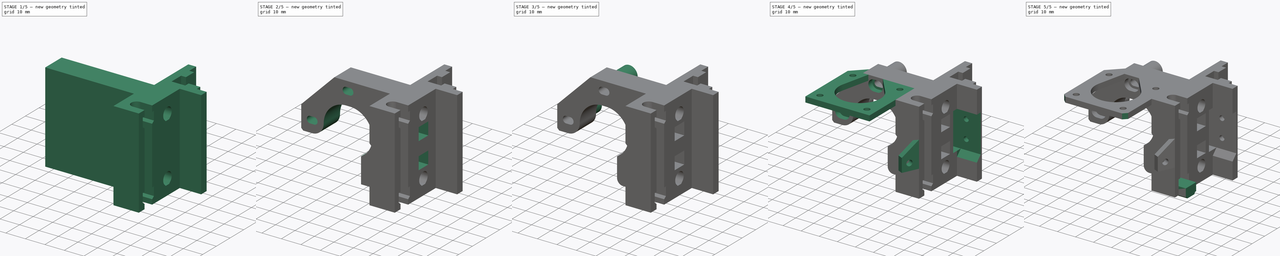
[diagram: build sequence overview — one tinted view per stage of 5, left to right]
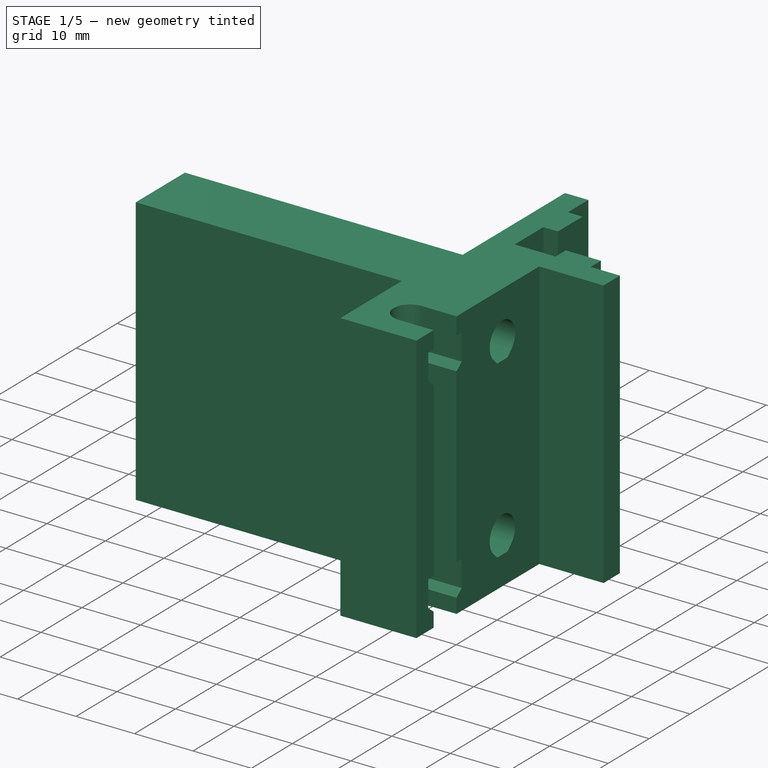
[diagram: stage 1 of 5 — iso view after this stage's code; geometry added in this stage tinted green]
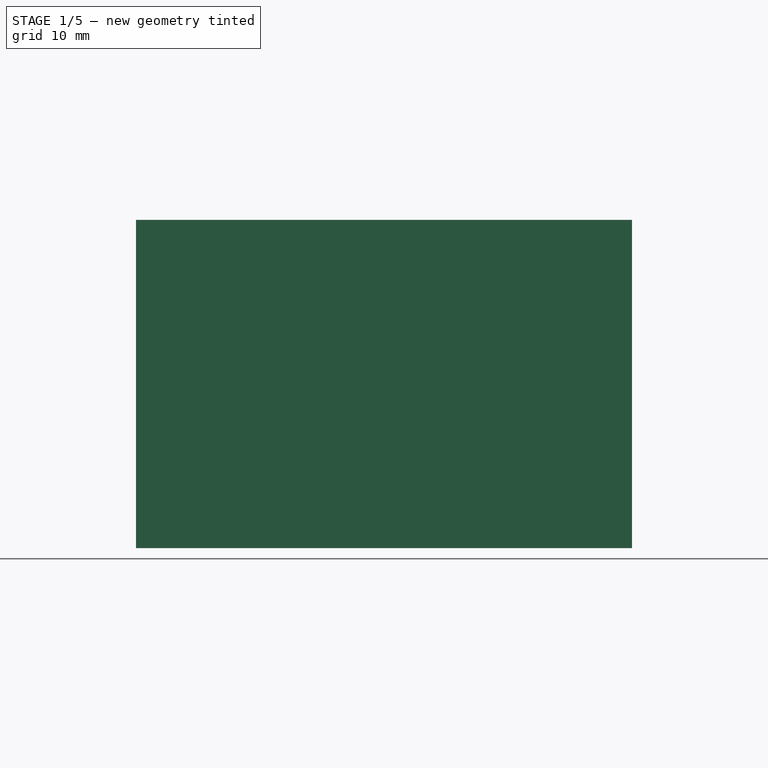
[diagram: stage 1 of 5 — front view after this stage's code; geometry added in this stage tinted green]
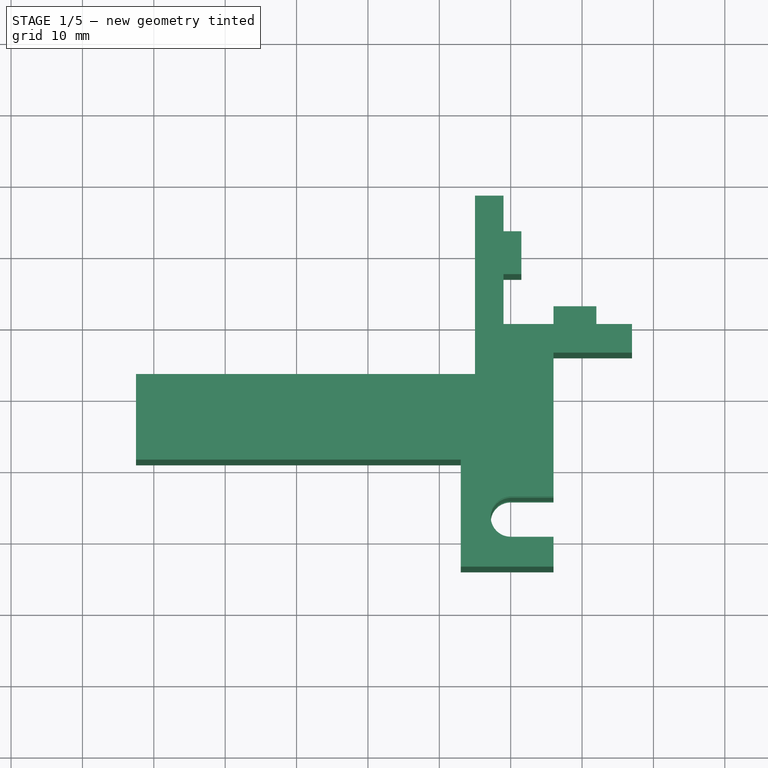
[diagram: stage 1 of 5 — top view after this stage's code; geometry added in this stage tinted green]
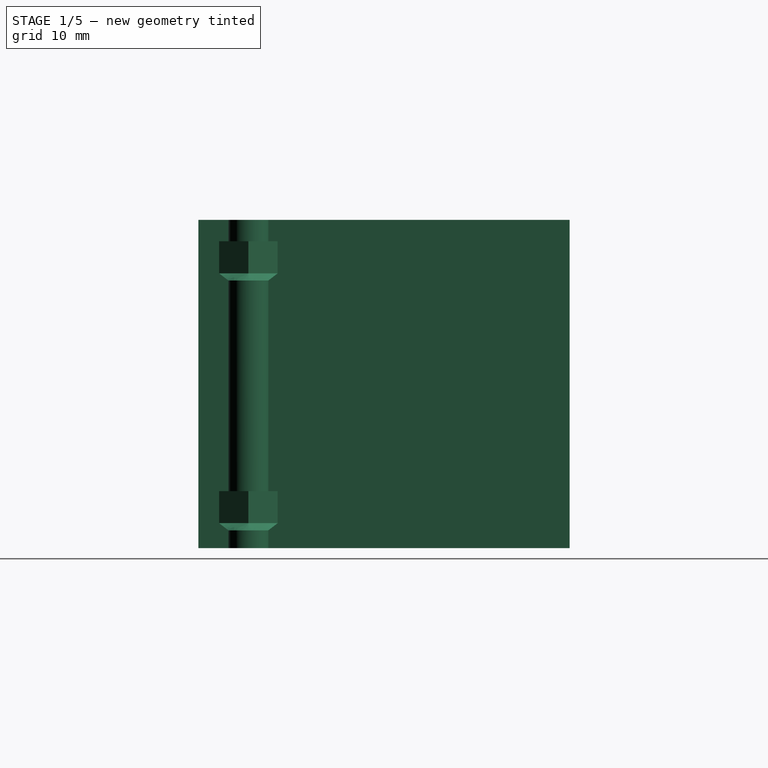
[diagram: stage 1 of 5 — right view after this stage's code; geometry added in this stage tinted green]
FCSTD DOCUMENT  (FreeCAD 0.14R3692 (Git))
Label: x-motor-e
License: CC-BY 3.0
LicenseURL: http://creativecommons.org/licenses/by/3.0/
objects: Sketcher::SketchObject×16, Part::Feature×13, PartDesign::Pocket×11, PartDesign::Pad×5, Part::Cut×3, Part::FeaturePython×3, Part::MultiFuse×2, Part::Cylinder×2, App::DocumentObjectGroup×2, Part::Chamfer×2, Part::Loft×1, Part::Mirroring×1, Part::Fillet×1
note: 76 computed .brp shape members not serialized (recipe doc carries the construction recipe); baked Part::Feature solids carry a one-line shape summary decoded from their .brp

FEATURE [Sketcher::SketchObject] Sketch  label="body-sketch"
  sketch-geometry (12):
    g0: LineSegment StartX=-21 StartY=18 StartZ=0 EndX=-21 EndY=0 EndZ=0
    g1: LineSegment StartX=-21 StartY=0 StartZ=0 EndX=-3 EndY=0 EndZ=0
    g2: LineSegment StartX=-3 StartY=0 StartZ=0 EndX=-3 EndY=-4 EndZ=0
    g3: LineSegment StartX=-3 StartY=-4 StartZ=0 EndX=-14 EndY=-4 EndZ=0
    g4: LineSegment StartX=-14 StartY=-4 StartZ=0 EndX=-14 EndY=-34 EndZ=0
    g5: LineSegment StartX=-14 StartY=-34 StartZ=0 EndX=-27 EndY=-34 EndZ=0
    g6: LineSegment StartX=-27 StartY=-34 StartZ=0 EndX=-27 EndY=-19 EndZ=0
    g7: LineSegment StartX=-27 StartY=-19 StartZ=0 EndX=-72.5 EndY=-19 EndZ=0
    g8: LineSegment StartX=-72.5 StartY=-19 StartZ=0 EndX=-72.5 EndY=-7 EndZ=0
    g9: LineSegment StartX=-72.5 StartY=-7 StartZ=0 EndX=-25 EndY=-7 EndZ=0
    g10: LineSegment StartX=-25 StartY=-7 StartZ=0 EndX=-25 EndY=18 EndZ=0
    g11: LineSegment StartX=-25 StartY=18 StartZ=0 EndX=-21 EndY=18 EndZ=0
  constraints (36):
    c: Coincident(g0,g1)
    c: Coincident(g1,g2)
    c: Coincident(g2,g3)
    c: Coincident(g3,g4)
    c: Coincident(g4,g5)
    c: Coincident(g5,g6)
    c: Coincident(g6,g7)
    c: Coincident(g7,g8)
    c: Coincident(g8,g9)
    c: Coincident(g9,g10)
    c: Coincident(g10,g11)
    c: Coincident(g11,g0)
    c: Vertical(g8)
    c: Vertical(g4)
    c: Vertical(g6)
    c: Vertical(g10)
    c: Vertical(g0)
    c: Vertical(g2)
    c: Horizontal(g5)
    c: Horizontal(g7)
    c: Horizontal(g9)
    c: Horizontal(g1)
    c: Horizontal(g3)
    c: Horizontal(g11)
    c: DistanceX(g1) = 18
    c: DistanceY(g0) = -18
    c: DistanceX(g11) = 4
    c: DistanceY(g2) = -4
    c: PointOnObject(g0,g-1)
    c: DistanceX(g-1,g0) = -21
    c: DistanceY(g4) = -30
    c: DistanceX(g5) = -13
    c: DistanceY(g6) = 15
    c: DistanceX(g7) = -45.5
    c: DistanceY(g8) = 12
    c: DistanceX(g3) = -11
FEATURE [PartDesign::Pad] Pad  label="body-pad"
  Length = 46
  Length2 = 100
  Sketch = -> Sketch
  Type = 0
FEATURE [Sketcher::SketchObject] Sketch001  label="smooth-rod-holes-sketch"
  Placement = pos=(-14,0,0) rot=(0.57735,0.57735,0.57735;2.0944rad)
  Support = -> Pad [Face5]
  sketch-geometry (8):
    g0: ArcOfCircle CenterX=-13 CenterY=38 CenterZ=0 NormalX=0 NormalY=0 NormalZ=1 Radius=3.1 StartAngle=5.49779 EndAngle=10.2102
    g1: LineSegment StartX=-10.808 StartY=35.808 StartZ=0 EndX=-11.7159 EndY=34.9 EndZ=0
    g2: LineSegment StartX=-11.7159 StartY=34.9 StartZ=0 EndX=-14.2841 EndY=34.9 EndZ=0
    g3: LineSegment StartX=-14.2841 StartY=34.9 StartZ=0 EndX=-15.192 EndY=35.808 EndZ=0
    g4: ArcOfCircle CenterX=-13 CenterY=8 CenterZ=0 NormalX=0 NormalY=0 NormalZ=1 Radius=3.1 StartAngle=5.49779 EndAngle=10.2102
    g5: LineSegment StartX=-10.808 StartY=5.80797 StartZ=0 EndX=-11.716 EndY=4.9 EndZ=0
    g6: LineSegment StartX=-11.716 StartY=4.9 StartZ=0 EndX=-14.2841 EndY=4.9 EndZ=0
    g7: LineSegment StartX=-14.2841 StartY=4.9 StartZ=0 EndX=-15.192 EndY=5.80798 EndZ=0
  constraints (26):
    c: Radius(g0) = 3.1
    c: DistanceY(g-1,g0) = 38
    c: DistanceX(g-1,g0) = -13
    c: Coincident(g1,g2)
    c: Coincident(g2,g3)
    c: Coincident(g0,g1)
    c: Coincident(g3,g0)
    c: Tangent(g0,g1)
    c: Tangent(g0,g3)
    c: Equal(g1,g3)
    c: Angle(g1,g3) = 1.5708
    c: Coincident(g5,g6)
    c: Coincident(g6,g7)
    c: Coincident(g4,g5)
    c: Coincident(g7,g4)
    c: Tangent(g5,g4)
    c: Tangent(g7,g4)
    c: Equal(g7,g5)
    c: Angle(g5,g7) = 1.5708
    c: Radius(g4) = 3.1
    c: DistanceY(g-1,g4) = 8
    c: DistanceX(g-1,g4) = -13
    c: DistanceY(g2,g0) = 3.1
    c: Horizontal(g2)
    c: DistanceY(g6,g4) = 3.1
    c: Horizontal(g6)
FEATURE [PartDesign::Pocket] Pocket  label="smooth-rod-holes-pocket"
  Length = 26
  Sketch = -> Sketch001
  Type = 0
FEATURE [Sketcher::SketchObject] Sketch002  label="threaded-rod-channel-sketch"
  Placement = pos=(0,0,46) rot=(0,0,1;0rad)
  Support = -> Pocket [Face5]
  sketch-geometry (4):
    g0: ArcOfCircle CenterX=-20 CenterY=-27 CenterZ=0 NormalX=0 NormalY=0 NormalZ=1 Radius=2.8 StartAngle=1.57079 EndAngle=4.71239
    g1: ArcOfCircle CenterX=-13 CenterY=-27 CenterZ=0 NormalX=0 NormalY=0 NormalZ=1 Radius=2.8 StartAngle=4.71239 EndAngle=7.85398
    g2: LineSegment StartX=-20 StartY=-29.8 StartZ=0 EndX=-13 EndY=-29.8 EndZ=0
    g3: LineSegment StartX=-20 StartY=-24.2 StartZ=0 EndX=-13 EndY=-24.2 EndZ=0
  constraints (14):
    c: Tangent(g0,g2)
    c: Tangent(g0,g3)
    c: Tangent(g1,g2)
    c: Tangent(g1,g3)
    c: Coincident(g0,g3)
    c: Coincident(g0,g2)
    c: Coincident(g2,g1)
    c: Coincident(g3,g1)
    c: Horizontal(g2)
    c: Equal(g0,g1)
    c: Radius(g0) = 2.8
    c: DistanceX(g2) = 7
    c: DistanceY(g-1,g0) = -27
    c: DistanceX(g-1,g0) = -20
FEATURE [PartDesign::Pocket] Pocket001  label="threaded-rod-channel-pocket"
  Length = 46
  Sketch = -> Sketch002
  Type = 0
FEATURE [Part::Feature] Fusion001  label="threaded-rod-nut-bottom"
  Placement = pos=(0,0,3.5) rot=(0,0,1;0rad)
  shape: bbox 14.73 x 8.2 x 5.5 mm, 16 faces (baked)
FEATURE [Part::Feature] Fusion002  label="threaded-rod-nut-top"
  Placement = pos=(0,0,38.5) rot=(0,0,1;0rad)
  shape: bbox 14.73 x 8.2 x 5.5 mm, 16 faces (baked)
FEATURE [Part::Cut] Cut  label="threaded-rod-nut-bottom-cut"
  Base = -> Pocket001
  Tool = -> Fusion001
FEATURE [Part::Cut] Cut001  label="threaded-rod-nut-top-cut"
  Base = -> Cut
  Tool = -> Fusion002
FEATURE [Sketcher::SketchObject] Sketch005  label="slot-guides-sketch"
  Placement = pos=(0,0,46) rot=(0,0,1;0rad)
  Support = -> Cut001 [Face5]
  sketch-geometry (8):
    g0: LineSegment StartX=-14 StartY=2.5 StartZ=0 EndX=-8 EndY=2.5 EndZ=0
    g1: LineSegment StartX=-8 StartY=2.5 StartZ=0 EndX=-8 EndY=0 EndZ=0
    g2: LineSegment StartX=-8 StartY=0 StartZ=0 EndX=-14 EndY=0 EndZ=0
    g3: LineSegment StartX=-14 StartY=0 StartZ=0 EndX=-14 EndY=2.5 EndZ=0
    g4: LineSegment StartX=-21 StartY=13 StartZ=0 EndX=-18.5 EndY=13 EndZ=0
    g5: LineSegment StartX=-18.5 StartY=13 StartZ=0 EndX=-18.5 EndY=7 EndZ=0
    g6: LineSegment StartX=-18.5 StartY=7 StartZ=0 EndX=-21 EndY=7 EndZ=0
    g7: LineSegment StartX=-21 StartY=7 StartZ=0 EndX=-21 EndY=13 EndZ=0
  constraints (24):
    c: Coincident(g0,g1)
    c: Coincident(g1,g2)
    c: Coincident(g2,g3)
    c: Coincident(g3,g0)
    c: Horizontal(g0)
    c: Horizontal(g2)
    c: Vertical(g1)
    c: Vertical(g3)
    c: Coincident(g4,g5)
    c: Coincident(g5,g6)
    c: Coincident(g6,g7)
    c: Coincident(g7,g4)
    c: Horizontal(g4)
    c: Horizontal(g6)
    c: Vertical(g5)
    c: Vertical(g7)
    c: DistanceX(g0) = 6
    c: DistanceY(g1) = -2.5
    c: Equal(g0,g5)
    c: Equal(g1,g4)
    c: DistanceX(g-1,g1) = -8
    c: PointOnObject(g1,g-1)
    c: DistanceX(g-1,g6) = -21
    c: DistanceY(g-1,g6) = 7
FEATURE [PartDesign::Pad] Pad003  label="slot-guides-pad"
  Length = 46
  Length2 = 100
  Reversed = true
  Sketch = -> Sketch005
  Type = 0
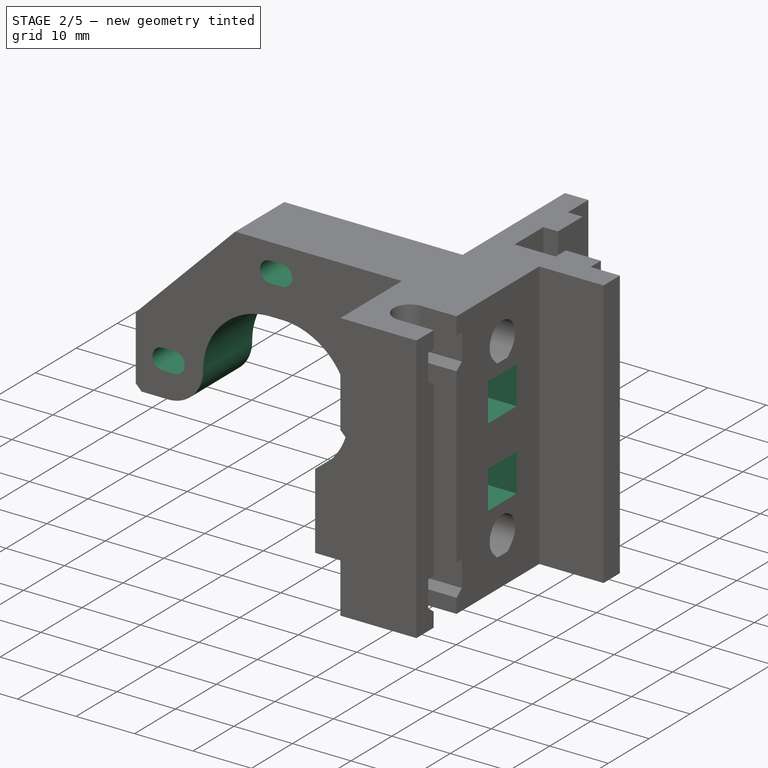
[diagram: stage 2 of 5 — iso view after this stage's code; geometry added in this stage tinted green]
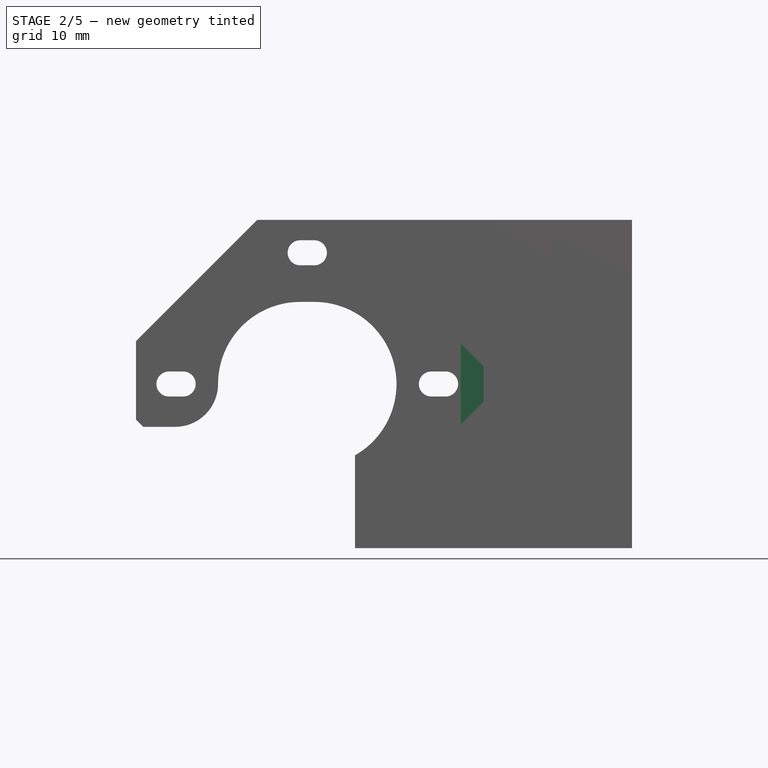
[diagram: stage 2 of 5 — front view after this stage's code; geometry added in this stage tinted green]
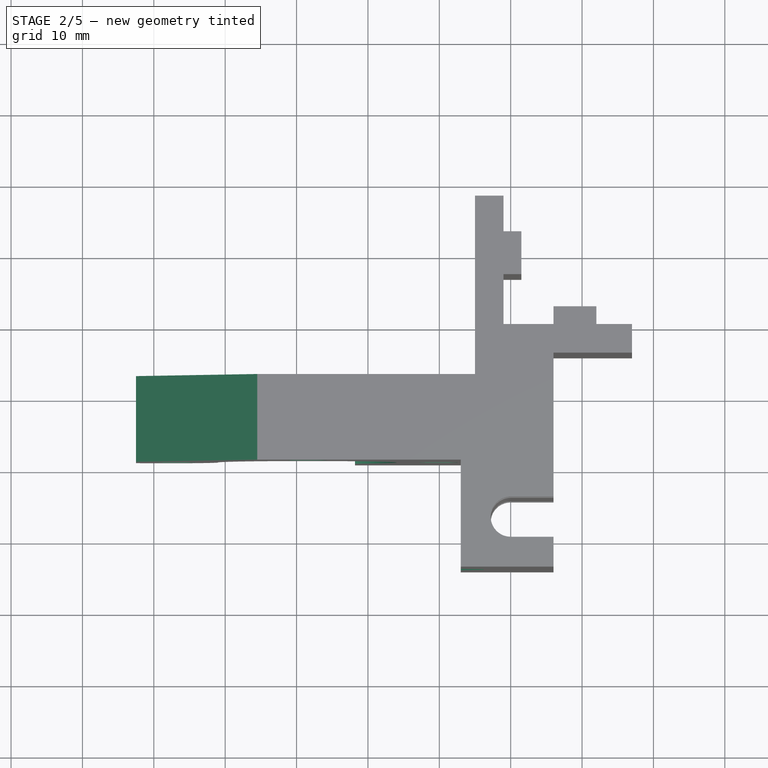
[diagram: stage 2 of 5 — top view after this stage's code; geometry added in this stage tinted green]
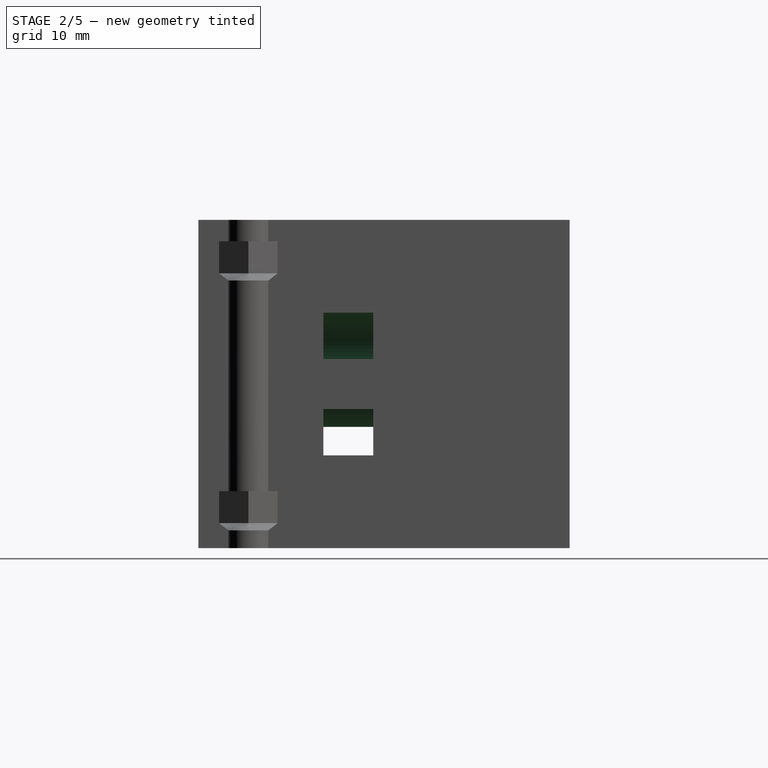
[diagram: stage 2 of 5 — right view after this stage's code; geometry added in this stage tinted green]
FEATURE [Sketcher::SketchObject] Sketch006  label="motor-corner-cutout-sketch"
  Placement = pos=(0,-34,0) rot=(1,0,0;1.5708rad)
  Support = -> Pad003 [Face15]
  sketch-geometry (9):
    g0: LineSegment [constr] StartX=-47.5 StartY=47.7487 StartZ=0 EndX=-72.2487 EndY=23 EndZ=0
    g1: LineSegment [constr] StartX=-72.2487 StartY=23 StartZ=0 EndX=-47.5 EndY=-1.74874 EndZ=0
    g2: LineSegment [constr] StartX=-47.5 StartY=-1.74874 StartZ=0 EndX=-22.7513 EndY=23 EndZ=0
    g3: LineSegment [constr] StartX=-22.7513 StartY=23 StartZ=0 EndX=-47.5 EndY=47.7487 EndZ=0
    g4: LineSegment StartX=-23.8119 StartY=25.5 StartZ=0 EndX=-23.8119 EndY=20.5 EndZ=0
    g5: LineSegment StartX=-23.8119 StartY=25.5 StartZ=0 EndX=-27 EndY=28.6881 EndZ=0
    g6: LineSegment StartX=-27 StartY=28.6881 StartZ=0 EndX=-27 EndY=17.3119 EndZ=0
    g7: LineSegment StartX=-27 StartY=17.3119 StartZ=0 EndX=-23.8119 EndY=20.5 EndZ=0
    g8: GeomPoint [constr] X=-23.8119 Y=24.0607 Z=0
  constraints (26):
    c: Coincident(g0,g1)
    c: Coincident(g1,g2)
    c: Coincident(g2,g3)
    c: Coincident(g3,g0)
    c: Distance(g3) = 35
    c: Equal(g2,g3)
    c: Equal(g3,g1)
    c: Equal(g1,g0)
    c: Angle(g2,g1) = 1.5708
    c: DistanceX(g-1,g1) = -47.5
    c: DistanceY(g-1,g2) = 23
    c: DistanceY(g-1,g0) = 23
    c: Vertical(g4)
    c: DistanceY(g4) = -5
    c: Coincident(g5,g6)
    c: Coincident(g6,g7)
    c: Coincident(g7,g4)
    c: Coincident(g4,g5)
    c: Parallel(g3,g5)
    c: Parallel(g7,g2)
    c: DistanceY(g4,g2) = 2.5
    c: Vertical(g6)
    c: DistanceX(g-1,g6) = -27
    c: PointOnObject(g8,g3)
    c: Distance(g8,g2) = 1.5
    c: PointOnObject(g8,g4)
FEATURE [PartDesign::Pocket] Pocket002  label="motor-corner-cutout-pocket"
  Length = 15
  Sketch = -> Sketch006
  Type = 0
FEATURE [Sketcher::SketchObject] Sketch007  label="motor-shaft-cutout-sketch"
  Placement = pos=(0,-19,0) rot=(1,0,0;1.5708rad)
  Support = -> Pocket002 [Face11]
  sketch-geometry (4):
    g0: ArcOfCircle CenterX=-47.5 CenterY=23 CenterZ=0 NormalX=0 NormalY=0 NormalZ=1 Radius=11.5 StartAngle=4.71239 EndAngle=7.85398
    g1: ArcOfCircle CenterX=-49.5 CenterY=23 CenterZ=0 NormalX=0 NormalY=0 NormalZ=1 Radius=11.5 StartAngle=1.5708 EndAngle=4.71239
    g2: LineSegment StartX=-47.5 StartY=34.5 StartZ=0 EndX=-49.5 EndY=34.5 EndZ=0
    g3: LineSegment StartX=-47.5 StartY=11.5 StartZ=0 EndX=-49.5 EndY=11.5 EndZ=0
  constraints (14):
    c: Tangent(g0,g2)
    c: Tangent(g0,g3)
    c: Tangent(g1,g2)
    c: Tangent(g1,g3)
    c: Coincident(g0,g3)
    c: Coincident(g0,g2)
    c: Coincident(g2,g1)
    c: Coincident(g3,g1)
    c: Horizontal(g2)
    c: Equal(g0,g1)
    c: DistanceX(g3) = -2
    c: Radius(g0) = 11.5
    c: DistanceX(g-1,g0) = -47.5
    c: DistanceY(g-1,g0) = 23
FEATURE [PartDesign::Pocket] Pocket003  label="motor-shaft-cutout-pocket"
  Length = 12
  Sketch = -> Sketch007
  Type = 0
FEATURE [Sketcher::SketchObject] Sketch008  label="motor-screw-holes-sketch"
  Placement = pos=(0,-19,0) rot=(1,0,0;1.5708rad)
  Support = -> Pocket003 [Face11]
  sketch-geometry (20):
    g0: LineSegment [constr] StartX=-47.5 StartY=41.3848 StartZ=0 EndX=-29.1152 EndY=23 EndZ=0
    g1: LineSegment [constr] StartX=-29.1152 StartY=23 StartZ=0 EndX=-47.5 EndY=4.61522 EndZ=0
    g2: LineSegment [constr] StartX=-47.5 StartY=4.61522 StartZ=0 EndX=-65.8848 EndY=23 EndZ=0
    g3: LineSegment [constr] StartX=-65.8848 StartY=23 StartZ=0 EndX=-47.5 EndY=41.3848 EndZ=0
    g4: ArcOfCircle CenterX=-31.1152 CenterY=23 CenterZ=0 NormalX=0 NormalY=0 NormalZ=1 Radius=1.75 StartAngle=1.5708 EndAngle=4.71239
    g5: ArcOfCircle CenterX=-29.1152 CenterY=23 CenterZ=0 NormalX=0 NormalY=0 NormalZ=1 Radius=1.75 StartAngle=4.71239 EndAngle=7.85398
    g6: LineSegment StartX=-31.1152 StartY=21.25 StartZ=0 EndX=-29.1152 EndY=21.25 EndZ=0
    g7: LineSegment StartX=-31.1152 StartY=24.75 StartZ=0 EndX=-29.1152 EndY=24.75 EndZ=0
    g8: ArcOfCircle CenterX=-49.5 CenterY=41.3848 CenterZ=0 NormalX=0 NormalY=0 NormalZ=1 Radius=1.75 StartAngle=1.5708 EndAngle=4.71239
    g9: ArcOfCircle CenterX=-47.5 CenterY=41.3848 CenterZ=0 NormalX=0 NormalY=0 NormalZ=1 Radius=1.75 StartAngle=4.71239 EndAngle=7.85398
    g10: LineSegment StartX=-49.5 StartY=39.6348 StartZ=0 EndX=-47.5 EndY=39.6348 EndZ=0
    g11: LineSegment StartX=-49.5 StartY=43.1348 StartZ=0 EndX=-47.5 EndY=43.1348 EndZ=0
    g12: ArcOfCircle CenterX=-67.8848 CenterY=23 CenterZ=0 NormalX=0 NormalY=0 NormalZ=1 Radius=1.75 StartAngle=1.5708 EndAngle=4.71239
    g13: ArcOfCircle CenterX=-65.8848 CenterY=23 CenterZ=0 NormalX=0 NormalY=0 NormalZ=1 Radius=1.75 StartAngle=4.71239 EndAngle=7.85398
    g14: LineSegment StartX=-67.8848 StartY=21.25 StartZ=0 EndX=-65.8848 EndY=21.25 EndZ=0
    g15: LineSegment StartX=-67.8848 StartY=24.75 StartZ=0 EndX=-65.8848 EndY=24.75 EndZ=0
    g16: ArcOfCircle CenterX=-47.5 CenterY=4.61522 CenterZ=0 NormalX=0 NormalY=0 NormalZ=1 Radius=1.75 StartAngle=4.7124 EndAngle=7.85397
    g17: ArcOfCircle CenterX=-49.5 CenterY=4.61522 CenterZ=0 NormalX=0 NormalY=0 NormalZ=1 Radius=1.75 StartAngle=1.5708 EndAngle=4.71239
    g18: LineSegment StartX=-47.5 StartY=6.36522 StartZ=0 EndX=-49.5 EndY=6.36522 EndZ=0
    g19: LineSegment StartX=-47.5 StartY=2.86522 StartZ=0 EndX=-49.5 EndY=2.86522 EndZ=0
  constraints (64):
    c: Coincident(g0,g1)
    c: Coincident(g1,g2)
    c: Coincident(g2,g3)
    c: Coincident(g3,g0)
    c: Distance(g2) = 26
    c: Equal(g1,g2)
    c: Equal(g2,g3)
    c: Equal(g3,g0)
    c: Angle(g1,g2) = 1.5708
    c: DistanceX(g-1,g1) = -47.5
    c: DistanceY(g-1,g0) = 23
    c: DistanceY(g-1,g2) = 23
    c: Tangent(g4,g6)
    c: Tangent(g4,g7)
    c: Tangent(g5,g6)
    c: Tangent(g5,g7)
    c: Coincident(g4,g7)
    c: Coincident(g4,g6)
    c: Coincident(g6,g5)
    c: Coincident(g7,g5)
    c: Horizontal(g6)
    c: Equal(g4,g5)
    c: Radius(g5) = 1.75
    c: DistanceX(g6) = 2
    c: Coincident(g5,g0)
    c: Tangent(g8,g10)
    c: Tangent(g8,g11)
    c: Tangent(g9,g10)
    c: Tangent(g9,g11)
    c: Coincident(g8,g11)
    c: Coincident(g8,g10)
    c: Coincident(g10,g9)
    c: Coincident(g11,g9)
    c: Horizontal(g10)
    c: Equal(g8,g9)
    c: Tangent(g12,g14)
    c: Tangent(g12,g15)
    c: Tangent(g13,g14)
    c: Tangent(g13,g15)
    c: Coincident(g12,g15)
    c: Coincident(g12,g14)
    c: Coincident(g14,g13)
    c: Coincident(g15,g13)
    c: Horizontal(g14)
    c: Equal(g12,g13)
    c: Equal(g9,g5)
    c: Equal(g5,g13)
    c: Equal(g14,g10)
    c: Equal(g10,g6)
    c: Coincident(g9,g0)
    c: Coincident(g13,g2)
    c: Tangent(g16,g18)
    c: Tangent(g16,g19)
    c: Tangent(g17,g18)
    c: Tangent(g17,g19)
    c: Coincident(g16,g19)
    c: Coincident(g16,g18)
    c: Coincident(g18,g17)
    c: Coincident(g19,g17)
    c: Horizontal(g18)
    c: Equal(g16,g17)
    c: Equal(g5,g16)
    c: Equal(g6,g19)
    c: Coincident(g16,g1)
FEATURE [PartDesign::Pocket] Pocket004  label="motor-screw-holes-pocket"
  Length = 12
  Sketch = -> Sketch008
  Type = 0
FEATURE [Sketcher::SketchObject] Sketch009  label="belt-channel-sketch"
  Placement = pos=(-14,0,0) rot=(0.57735,0.57735,0.57735;2.0944rad)
  Support = -> Pocket004 [Face22]
  sketch-geometry (8):
    g0: LineSegment StartX=-16.5 StartY=19.5 StartZ=0 EndX=-9.5 EndY=19.5 EndZ=0
    g1: LineSegment StartX=-9.5 StartY=19.5 StartZ=0 EndX=-9.5 EndY=13 EndZ=0
    g2: LineSegment StartX=-9.5 StartY=13 StartZ=0 EndX=-16.5 EndY=13 EndZ=0
    g3: LineSegment StartX=-16.5 StartY=13 StartZ=0 EndX=-16.5 EndY=19.5 EndZ=0
    g4: LineSegment StartX=-16.5 StartY=33 StartZ=0 EndX=-9.5 EndY=33 EndZ=0
    g5: LineSegment StartX=-9.5 StartY=33 StartZ=0 EndX=-9.5 EndY=26.5 EndZ=0
    g6: LineSegment StartX=-9.5 StartY=26.5 StartZ=0 EndX=-16.5 EndY=26.5 EndZ=0
    g7: LineSegment StartX=-16.5 StartY=26.5 StartZ=0 EndX=-16.5 EndY=33 EndZ=0
  constraints (24):
    c: Coincident(g0,g1)
    c: Coincident(g1,g2)
    c: Coincident(g2,g3)
    c: Coincident(g3,g0)
    c: Horizontal(g0)
    c: Horizontal(g2)
    c: Vertical(g1)
    c: Vertical(g3)
    c: DistanceY(g-1,g1) = 13
    c: DistanceX(g2) = -7
    c: DistanceY(g1) = -6.5
    c: DistanceX(g-1,g1) = -9.5
    c: Coincident(g4,g5)
    c: Coincident(g5,g6)
    c: Coincident(g6,g7)
    c: Coincident(g7,g4)
    c: Horizontal(g4)
    c: Horizontal(g6)
    c: Vertical(g5)
    c: Vertical(g7)
    c: Equal(g2,g6)
    c: Equal(g1,g5)
    c: DistanceX(g-1,g5) = -9.5
    c: DistanceY(g5,g0) = -7
FEATURE [PartDesign::Pocket] Pocket005  label="belt-channel-pocket"
  Length = 33
  Sketch = -> Sketch009
  Type = 0
FEATURE [Sketcher::SketchObject] Sketch010  label="motor-holder-cutout-sketch"
  ExternalGeometry = -> [Pocket005]
  Placement = pos=(0,-19,0) rot=(1,0,0;1.5708rad)
  Support = -> Pocket005 [Face11]
  sketch-geometry (6):
    g0: LineSegment StartX=-41.8211 StartY=0 StartZ=0 EndX=-41.8211 EndY=23 EndZ=0
    g1: LineSegment StartX=-41.8211 StartY=23 StartZ=0 EndX=-61 EndY=23 EndZ=0
    g2: LineSegment StartX=-67 StartY=17 StartZ=0 EndX=-72.5 EndY=17 EndZ=0
    g3: LineSegment StartX=-72.5 StartY=17 StartZ=0 EndX=-72.5 EndY=0 EndZ=0
    g4: LineSegment StartX=-72.5 StartY=0 StartZ=0 EndX=-41.8211 EndY=0 EndZ=0
    g5: ArcOfCircle CenterX=-67 CenterY=23 CenterZ=0 NormalX=0 NormalY=0 NormalZ=1 Radius=6 StartAngle=4.71239 EndAngle=6.28319
  constraints (19):
    c: Coincident(g0,g1)
    c: Coincident(g2,g3)
    c: Coincident(g3,g4)
    c: Coincident(g4,g0)
    c: Horizontal(g2)
    c: Horizontal(g1)
    c: Horizontal(g4)
    c: Vertical(g3)
    c: Vertical(g0)
    c: DistanceY(g-1,g0) = 23
    c: DistanceX(g-1,g2) = -72.5
    c: DistanceX(g2) = -5.5
    c: PointOnObject(g0,g-1)
    c: Coincident(g1,g5)
    c: Coincident(g2,g5)
    c: Tangent(g2,g5)
    c: DistanceY(g-1,g5) = 23
    c: Radius(g5) = 6
    c: PointOnObject(g-3,g0)
FEATURE [PartDesign::Pocket] Pocket006  label="motor-holder-cutout-pocket"
  Length = 12
  Sketch = -> Sketch010
  Type = 0
FEATURE [App::DocumentObjectGroup] Group  label="parts"
  Group = -> [Clone,Clone001,Clone002,Cut002]
FEATURE [Part::Feature] Part__Feature006  label="nema14-stepper-motor-e-left"
  Placement = pos=(-44.75,-36.75,43) rot=(0,0,-1;1.5708rad)
  shape: bbox 35.05 x 36.32 x 61.75 mm, 100 faces (baked)
FEATURE [App::DocumentObjectGroup] Grupo  label="aux"
  Group = -> [Part__Feature,Part__Feature001,Part__Feature002,Part__Feature003,Part__Feature004,Part__Feature006]
FEATURE [Part::Chamfer] Chamfer  label="motor-holder-chamfer"
  Base = -> Pocket006
  Edges = 2 edges: [Edge30 r=17,Edge157 r=1]
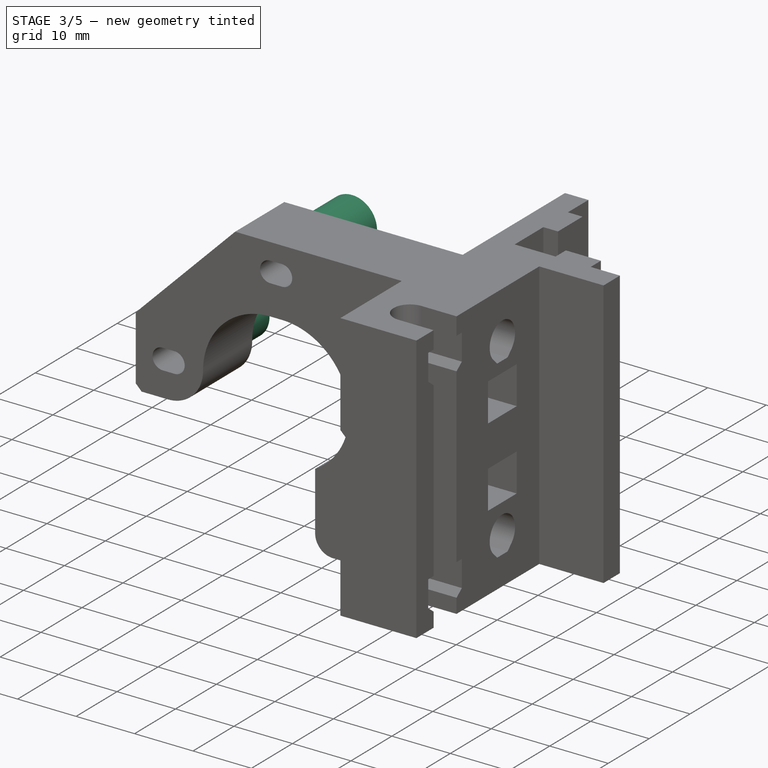
[diagram: stage 3 of 5 — iso view after this stage's code; geometry added in this stage tinted green]
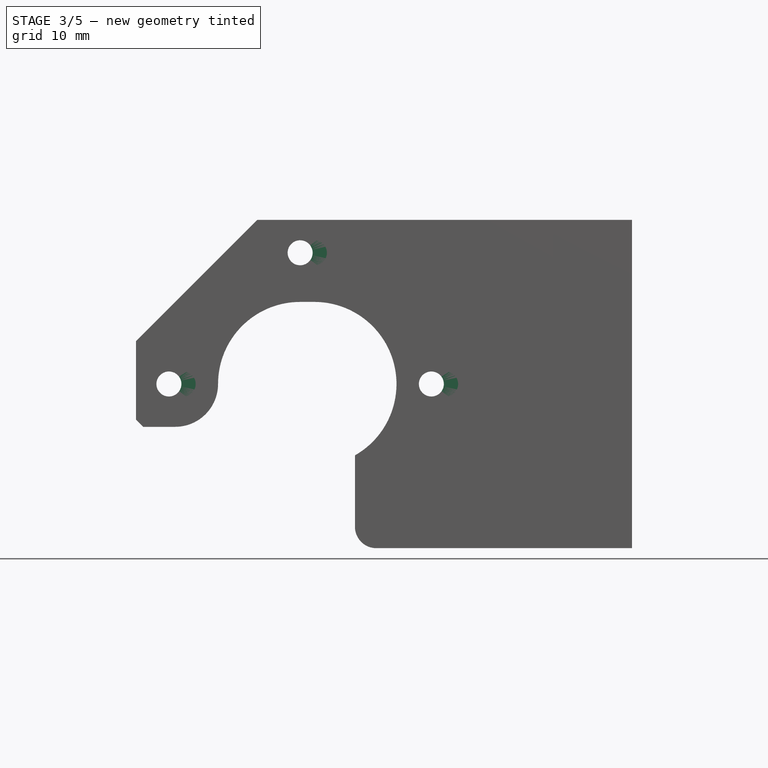
[diagram: stage 3 of 5 — front view after this stage's code; geometry added in this stage tinted green]
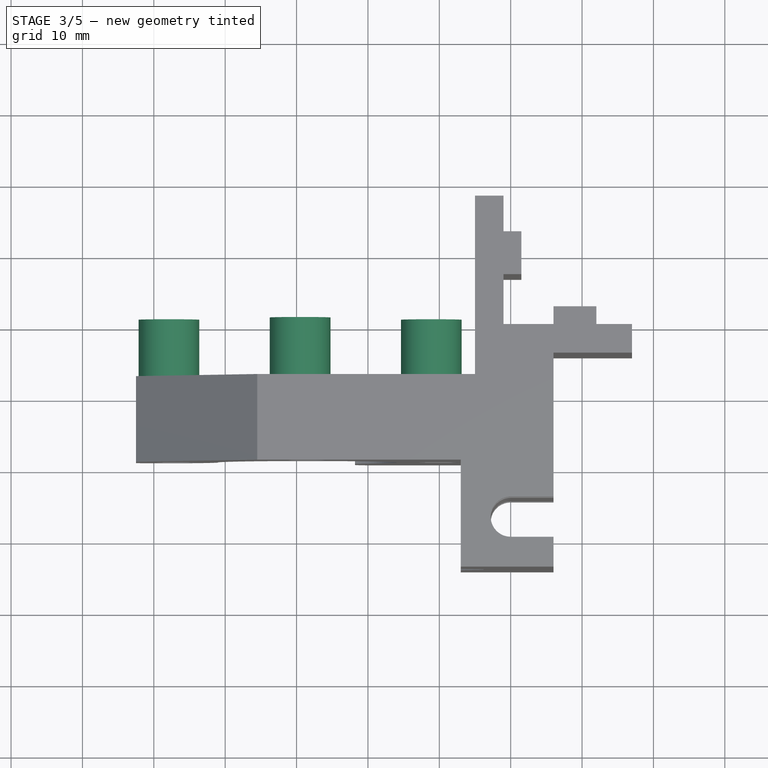
[diagram: stage 3 of 5 — top view after this stage's code; geometry added in this stage tinted green]
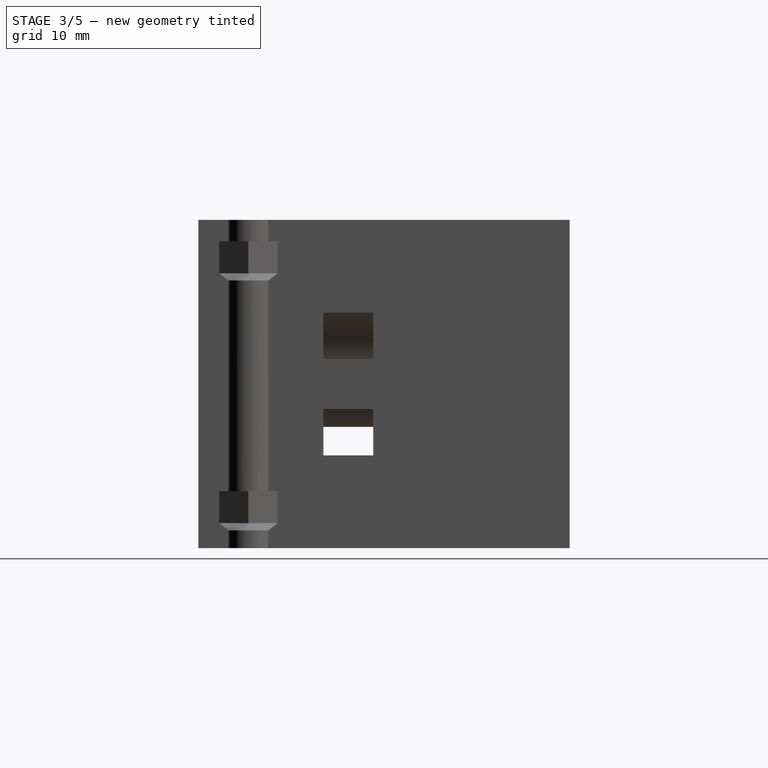
[diagram: stage 3 of 5 — right view after this stage's code; geometry added in this stage tinted green]
FEATURE [Part::Feature] Part__Feature  label="extrusion-p20n6b-300-left"
  Placement = pos=(-11,10,-233) rot=(0,0,1;0rad)
  shape: bbox 20 x 20 x 300 mm, 154 faces (baked)
FEATURE [Part::Feature] Part__Feature001  label="smooth-rod-06-300-x-bottom"
  Placement = pos=(260,-13,8) rot=(0.57735,0.57735,-0.57735;4.18879rad)
  shape: bbox 300 x 6 x 6 mm, 3 faces (baked)
FEATURE [Part::Feature] Part__Feature002  label="smooth-rod-06-300-x-top"
  Placement = pos=(260,-13,38) rot=(0.57735,0.57735,-0.57735;4.18879rad)
  shape: bbox 300 x 6 x 6 mm, 3 faces (baked)
FEATURE [Part::Feature] Part__Feature003  label="threaded-rod-05-230-z-left"
  Placement = pos=(-20,-27,-162.5) rot=(0,0,1;0rad)
  shape: bbox 5 x 5 x 230 mm, 3 faces (baked)
FEATURE [Part::Feature] Part__Feature004  label="nema14-stepper-motor-x"
  Placement = pos=(-49.5,1,23) rot=(0.862856,-0.357407,0.357407;1.71777rad)
  shape: bbox 46.74 x 61.75 x 46.74 mm, 100 faces (baked)
FEATURE [Part::Feature] Pocket009001  label="x-motor"
  shape: bbox 69 x 52 x 46 mm, 105 faces (baked)
FEATURE [Part::Cylinder] Cylinder  label="spacer-hole-cylinder"
  Angle = 360
  Height = 10
  Placement = pos=(0,0,-1) rot=(0,0,1;0rad)
  Radius = 1.75
FEATURE [Part::Cylinder] Cylinder001  label="spacer-body-cylinder"
  Angle = 360
  Height = 8
  Radius = 4.25
FEATURE [Part::Cut] Cut002  label="spacer-cut"
  Base = -> Cylinder001
  Tool = -> Cylinder
FEATURE [Part::FeaturePython] Clone  label="x-motor-spacer-left"  # Draft clone (typed FeaturePython)
  Objects = -> [Cut002]
  Placement = pos=(-67.8848,1,23) rot=(0.862856,-0.357407,0.357407;1.71777rad)
  Scale = (1,1,1)
FEATURE [Part::FeaturePython] Clone001  label="x-motor-spacer-top"  # Draft clone (typed FeaturePython)
  Objects = -> [Cut002]
  Placement = pos=(-49.5,1,41.3848) rot=(0.862856,-0.357407,0.357407;1.71777rad)
  Scale = (1,1,1)
FEATURE [Part::FeaturePython] Clone002  label="x-motor-spacer-right"  # Draft clone (typed FeaturePython)
  Objects = -> [Cut002]
  Placement = pos=(-31.1152,1,23) rot=(0.862856,-0.357407,0.357407;1.71777rad)
  Scale = (1,1,1)
FEATURE [Part::Fillet] Fillet  label="motor-holder-fillet"
  Base = -> Chamfer
  Edges = 1 edges r=3: [Edge161]
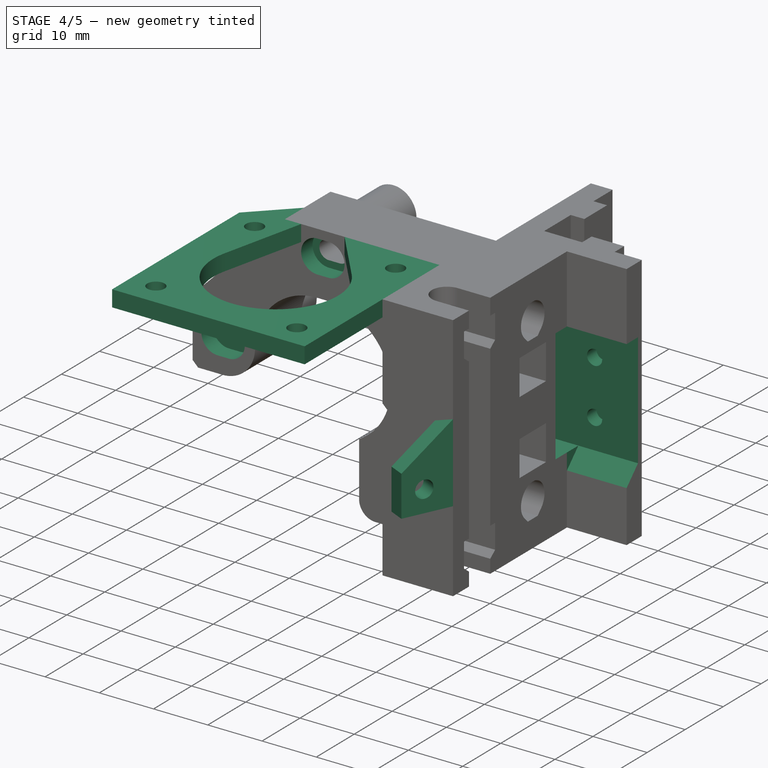
[diagram: stage 4 of 5 — iso view after this stage's code; geometry added in this stage tinted green]
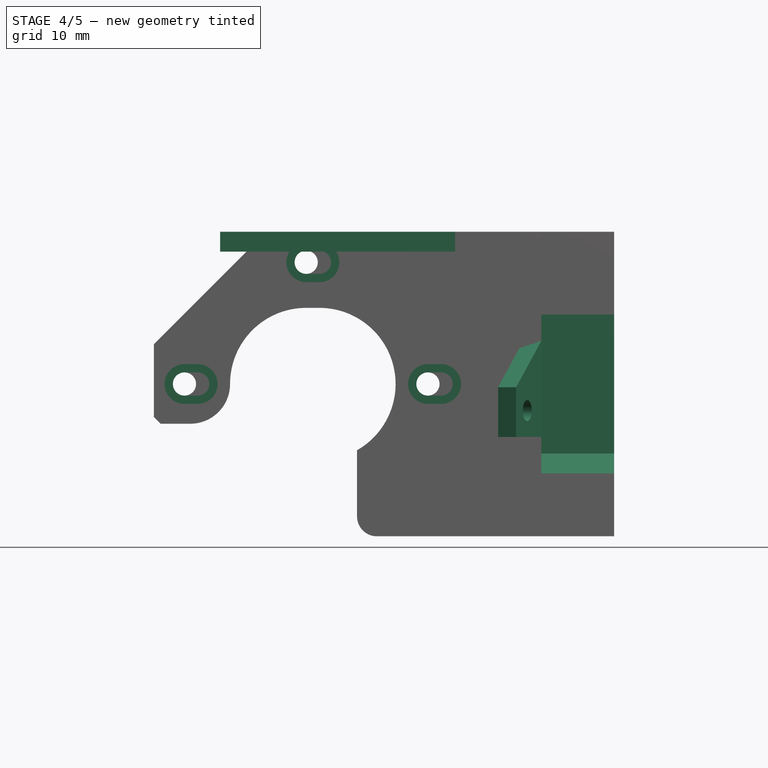
[diagram: stage 4 of 5 — front view after this stage's code; geometry added in this stage tinted green]
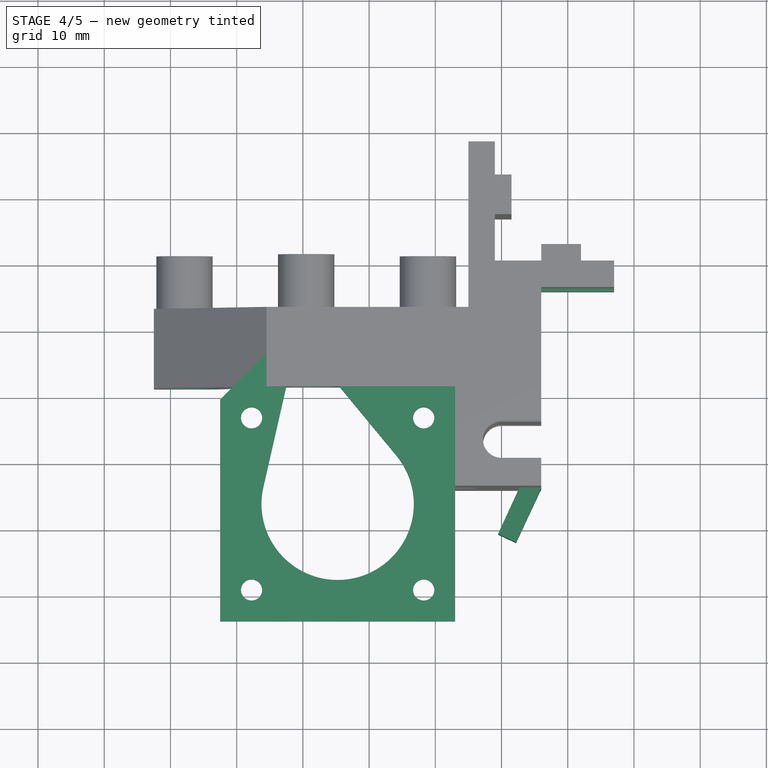
[diagram: stage 4 of 5 — top view after this stage's code; geometry added in this stage tinted green]
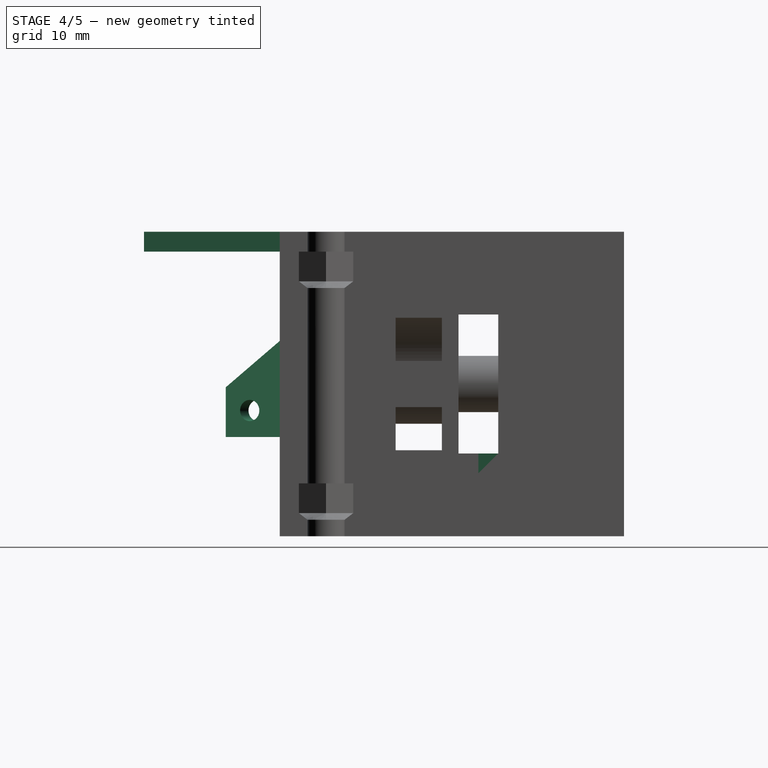
[diagram: stage 4 of 5 — right view after this stage's code; geometry added in this stage tinted green]
FEATURE [Part::Feature] Pocket009003  label="fan-holder"
  Placement = pos=(14,-34,15) rot=(0,0,1;0.436332rad)
  shape: bbox 6.522 x 9.425 x 14.5 mm, 7 faces (baked)
FEATURE [Part::Mirroring] Part__Mirroring  label="fan-holder (Mirror #1)"
  Base = (0,0,0)
  Normal = (1,0,0)
  Source = -> Pocket009003
FEATURE [Sketcher::SketchObject] Sketch011  label="endstop-channel-sketch"
  Placement = pos=(-25,0,0) rot=(0.57735,-0.57735,-0.57735;2.0944rad)
  Support = -> Fillet [Face4]
  sketch-geometry (4):
    g0: LineSegment StartX=1 StartY=33.5 StartZ=0 EndX=7 EndY=33.5 EndZ=0
    g1: LineSegment StartX=7 StartY=33.5 StartZ=0 EndX=7 EndY=12.5 EndZ=0
    g2: LineSegment StartX=7 StartY=12.5 StartZ=0 EndX=1 EndY=12.5 EndZ=0
    g3: LineSegment StartX=1 StartY=12.5 StartZ=0 EndX=1 EndY=33.5 EndZ=0
  constraints (12):
    c: Coincident(g0,g1)
    c: Coincident(g1,g2)
    c: Coincident(g2,g3)
    c: Coincident(g3,g0)
    c: Horizontal(g0)
    c: Horizontal(g2)
    c: Vertical(g1)
    c: Vertical(g3)
    c: DistanceX(g2) = -6
    c: DistanceY(g3) = 21
    c: DistanceX(g-1,g2) = 1
    c: DistanceY(g-1,g2) = 12.5
FEATURE [PartDesign::Pocket] Pocket007  label="endstop-channel-pocket"
  Length = 22
  Sketch = -> Sketch011
  Type = 0
FEATURE [Sketcher::SketchObject] Sketch012  label="endstop-channel-overhang-sketch"
  Placement = pos=(-3,0,0) rot=(0.57735,0.57735,0.57735;2.0944rad)
  Support = -> Pocket007 [Face20]
  sketch-geometry (3):
    g0: LineSegment StartX=-1 StartY=12.5 StartZ=0 EndX=-4 EndY=9.5 EndZ=0
    g1: LineSegment StartX=-4 StartY=9.5 StartZ=0 EndX=-4 EndY=12.5 EndZ=0
    g2: LineSegment StartX=-4 StartY=12.5 StartZ=0 EndX=-1 EndY=12.5 EndZ=0
  constraints (9):
    c: Coincident(g0,g1)
    c: Coincident(g1,g2)
    c: Coincident(g2,g0)
    c: Horizontal(g2)
    c: Vertical(g1)
    c: DistanceX(g2) = 3
    c: Equal(g2,g1)
    c: DistanceX(g-1,g1) = -4
    c: DistanceY(g-1,g1) = 12.5
FEATURE [PartDesign::Pocket] Pocket008  label="endstop-channel-overhang-pocket"
  Length = 11
  Sketch = -> Sketch012
  Type = 0
FEATURE [Sketcher::SketchObject] Sketch013  label="endstop-screw-holes-sketch"
  Placement = pos=(0,-1,0) rot=(1,0,0;1.5708rad)
  Support = -> Pocket008 [Face47]
  sketch-geometry (2):
    g0: Circle CenterX=-11 CenterY=28 CenterZ=0 NormalX=0 NormalY=0 NormalZ=1 Radius=1.4
    g1: Circle CenterX=-11 CenterY=18 CenterZ=0 NormalX=0 NormalY=0 NormalZ=1 Radius=1.4
  constraints (6):
    c: Radius(g1) = 1.4
    c: Equal(g1,g0)
    c: DistanceY(g1,g0) = 10
    c: DistanceX(g-1,g1) = -11
    c: DistanceY(g-1,g1) = 18
    c: DistanceX(g-1,g0) = -11
FEATURE [PartDesign::Pocket] Pocket009  label="endstop-screw-holes-pocket"
  Length = 2.5
  Sketch = -> Sketch013
  Type = 0
FEATURE [Sketcher::SketchObject] Sketch014  label="motor-screw-head-sketch"
  ExternalGeometry = -> [Pocket009]
  Placement = pos=(0,-19,0) rot=(1,0,0;1.5708rad)
  Support = -> Pocket009 [Face5]
  sketch-geometry (12):
    g0: ArcOfCircle CenterX=-31.1152 CenterY=23 CenterZ=0 NormalX=0 NormalY=0 NormalZ=1 Radius=3 StartAngle=1.5708 EndAngle=4.71239
    g1: ArcOfCircle CenterX=-29.1152 CenterY=23 CenterZ=0 NormalX=0 NormalY=0 NormalZ=1 Radius=3 StartAngle=4.71239 EndAngle=7.85398
    g2: LineSegment StartX=-31.1152 StartY=20 StartZ=0 EndX=-29.1152 EndY=20 EndZ=0
    g3: LineSegment StartX=-31.1152 StartY=26 StartZ=0 EndX=-29.1152 EndY=26 EndZ=0
    g4: ArcOfCircle CenterX=-49.5 CenterY=41.3848 CenterZ=0 NormalX=0 NormalY=0 NormalZ=1 Radius=3 StartAngle=1.5708 EndAngle=4.71239
    g5: ArcOfCircle CenterX=-47.5 CenterY=41.3848 CenterZ=0 NormalX=0 NormalY=0 NormalZ=1 Radius=3 StartAngle=4.71239 EndAngle=7.85398
    g6: LineSegment StartX=-49.5 StartY=38.3848 StartZ=0 EndX=-47.5 EndY=38.3848 EndZ=0
    g7: LineSegment StartX=-49.5 StartY=44.3848 StartZ=0 EndX=-47.5 EndY=44.3848 EndZ=0
    g8: ArcOfCircle CenterX=-67.8848 CenterY=23 CenterZ=0 NormalX=0 NormalY=0 NormalZ=1 Radius=3 StartAngle=1.5708 EndAngle=4.71239
    g9: ArcOfCircle CenterX=-65.8848 CenterY=23 CenterZ=0 NormalX=0 NormalY=0 NormalZ=1 Radius=3 StartAngle=4.71239 EndAngle=7.85398
    g10: LineSegment StartX=-67.8848 StartY=20 StartZ=0 EndX=-65.8848 EndY=20 EndZ=0
    g11: LineSegment StartX=-67.8848 StartY=26 StartZ=0 EndX=-65.8848 EndY=26 EndZ=0
  constraints (39):
    c: Tangent(g0,g2)
    c: Tangent(g0,g3)
    c: Tangent(g1,g2)
    c: Tangent(g1,g3)
    c: Coincident(g0,g3)
    c: Coincident(g0,g2)
    c: Coincident(g2,g1)
    c: Coincident(g3,g1)
    c: Horizontal(g2)
    c: Equal(g0,g1)
    c: Tangent(g4,g6)
    c: Tangent(g4,g7)
    c: Tangent(g5,g6)
    c: Tangent(g5,g7)
    c: Coincident(g4,g7)
    c: Coincident(g4,g6)
    c: Coincident(g6,g5)
    c: Coincident(g7,g5)
    c: Horizontal(g6)
    c: Equal(g4,g5)
    c: Tangent(g8,g10)
    c: Tangent(g8,g11)
    c: Tangent(g9,g10)
    c: Tangent(g9,g11)
    c: Coincident(g8,g11)
    c: Coincident(g8,g10)
    c: Coincident(g10,g9)
    c: Coincident(g11,g9)
    c: Horizontal(g10)
    c: Equal(g8,g9)
    c: DistanceX(g0,g1) = 2
    c: Equal(g1,g5)
    c: Equal(g5,g9)
    c: Radius(g1) = 3
    c: Equal(g2,g6)
    c: Equal(g6,g10)
    c: Coincident(g1,g-3)
    c: Coincident(g5,g-4)
    c: Coincident(g9,g-5)
FEATURE [PartDesign::Pocket] Pocket009002  label="motor-screw-head-pocket"
  Length = 3
  Sketch = -> Sketch014
  Type = 0
FEATURE [Sketcher::SketchObject] Sketch015  label="motor-e-holder-sketch"
  Placement = pos=(0,0,46) rot=(0,0,1;0rad)
  Support = -> Pocket009002 [Face26]
  sketch-geometry (15):
    g0: LineSegment StartX=-27 StartY=-19 StartZ=0 EndX=-44.5 EndY=-19 EndZ=0
    g1: LineSegment StartX=-62.5 StartY=-21 StartZ=0 EndX=-62.5 EndY=-54.5 EndZ=0
    g2: LineSegment StartX=-62.5 StartY=-54.5 StartZ=0 EndX=-27 EndY=-54.5 EndZ=0
    g3: LineSegment StartX=-27 StartY=-54.5 StartZ=0 EndX=-27 EndY=-19 EndZ=0
    g4: ArcOfCircle CenterX=-44.75 CenterY=-36.75 CenterZ=0 NormalX=0 NormalY=0 NormalZ=1 Radius=11.5 StartAngle=2.91754 EndAngle=6.97383
    g5: LineSegment StartX=-52.5 StartY=-11 StartZ=0 EndX=-52.5 EndY=-19 EndZ=0
    g6: LineSegment StartX=-52.5 StartY=-11 StartZ=0 EndX=-62.5 EndY=-21 EndZ=0
    g7: Circle CenterX=-57.75 CenterY=-23.75 CenterZ=0 NormalX=0 NormalY=0 NormalZ=1 Radius=1.6
    g8: Circle CenterX=-57.75 CenterY=-49.75 CenterZ=0 NormalX=0 NormalY=0 NormalZ=1 Radius=1.6
    g9: Circle CenterX=-31.75 CenterY=-49.75 CenterZ=0 NormalX=0 NormalY=0 NormalZ=1 Radius=1.6
    g10: Circle CenterX=-31.75 CenterY=-23.75 CenterZ=0 NormalX=0 NormalY=0 NormalZ=1 Radius=1.6
    g11: LineSegment [constr] StartX=-31.75 StartY=-23.75 StartZ=0 EndX=-57.75 EndY=-23.75 EndZ=0
    g12: LineSegment [constr] StartX=-57.75 StartY=-23.75 StartZ=0 EndX=-57.75 EndY=-49.75 EndZ=0
    g13: LineSegment StartX=-52.5 StartY=-19 StartZ=0 EndX=-55.9626 EndY=-34.1949 EndZ=0
    g14: LineSegment StartX=-35.8854 StartY=-29.4241 StartZ=0 EndX=-44.5 EndY=-19 EndZ=0
  constraints (43):
    c: Coincident(g6,g1)
    c: Coincident(g1,g2)
    c: Coincident(g2,g3)
    c: Coincident(g3,g0)
    c: Horizontal(g0)
    c: Horizontal(g2)
    c: Vertical(g1)
    c: Vertical(g3)
    c: DistanceX(g-1,g0) = -27
    c: DistanceY(g-1,g0) = -19
    c: Equal(g2,g3)
    c: DistanceY(g3) = 35.5
    c: Radius(g4) = 11.5
    c: DistanceX(g4,g0) = 17.75
    c: DistanceY(g4,g0) = 17.75
    c: Vertical(g5)
    c: Coincident(g5,g6)
    c: DistanceX(g0) = -17.5
    c: Coincident(g7,g11)
    c: Coincident(g10,g11)
    c: Horizontal(g11)
    c: DistanceX(g10,g0) = 4.75
    c: DistanceX(g11) = -26
    c: DistanceY(g10,g0) = 4.75
    c: Equal(g9,g10)
    c: Equal(g10,g7)
    c: Equal(g7,g8)
    c: Radius(g10) = 1.6
    c: Coincident(g12,g7)
    c: Coincident(g8,g12)
    c: Vertical(g12)
    c: Equal(g12,g11)
    c: Symmetric(g9,g7,g4)
    c: Angle(g6,g5) = 0.785398
    c: DistanceY(g1) = -33.5
    c: Coincident(g13,g5)
    c: Coincident(g13,g4)
    c: Tangent(g13,g4)
    c: Coincident(g14,g4)
    c: Tangent(g14,g4)
    c: Coincident(g14,g0)
    c: PointOnObject(g5,g0)
    c: DistanceX(g5,g0) = 8
FEATURE [PartDesign::Pad] Pad004  label="motor-e-holder-pad"
  Length = 3
  Length2 = 100
  Reversed = true
  Sketch = -> Sketch015
  Type = 0
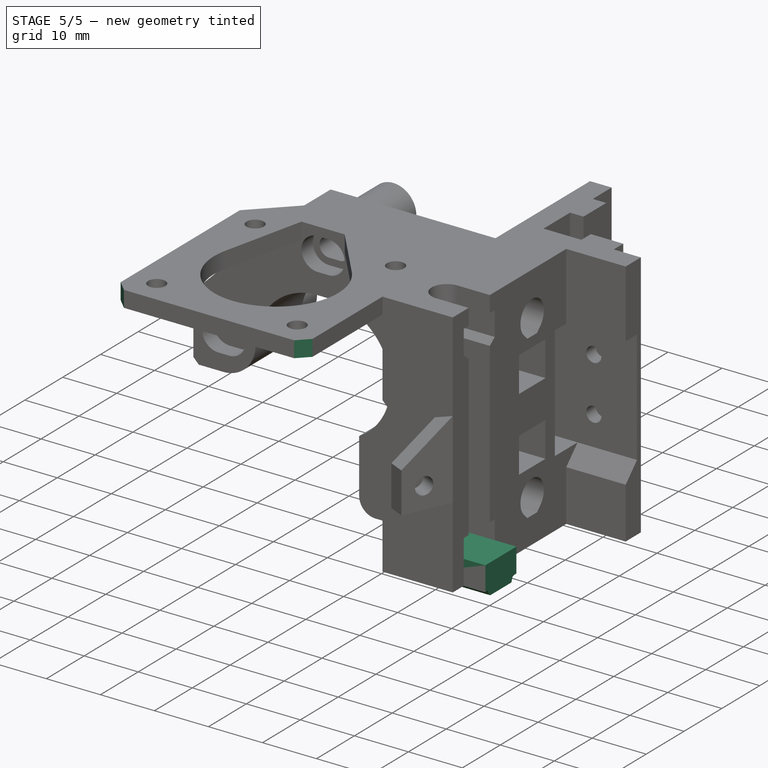
[diagram: stage 5 of 5 — iso view after this stage's code; geometry added in this stage tinted green]
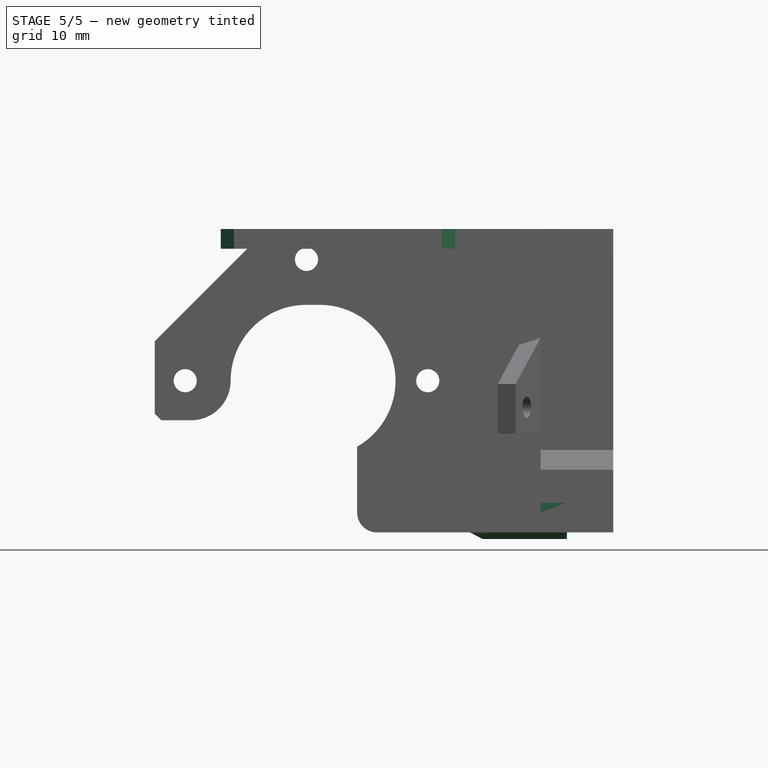
[diagram: stage 5 of 5 — front view after this stage's code; geometry added in this stage tinted green]
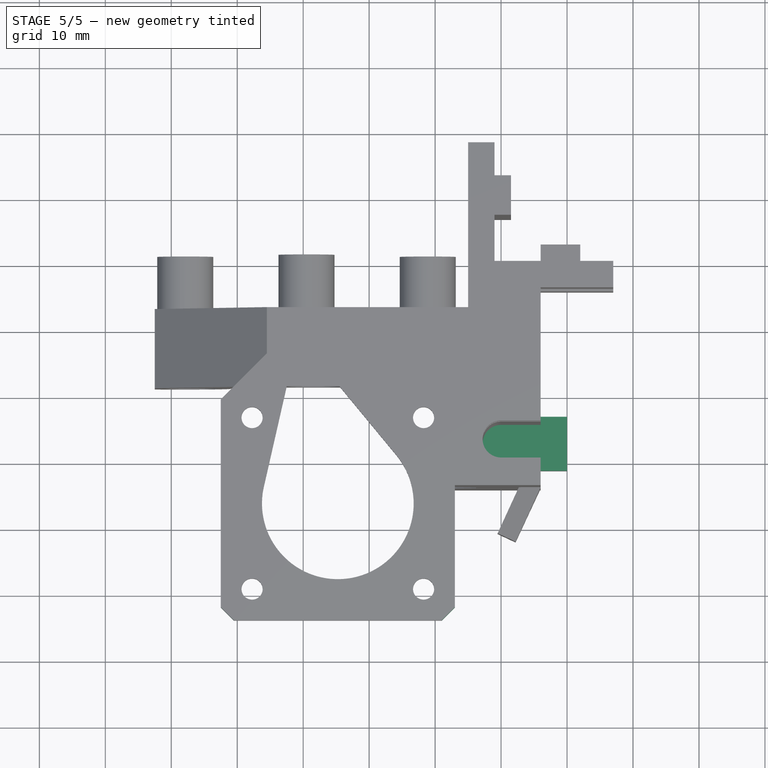
[diagram: stage 5 of 5 — top view after this stage's code; geometry added in this stage tinted green]
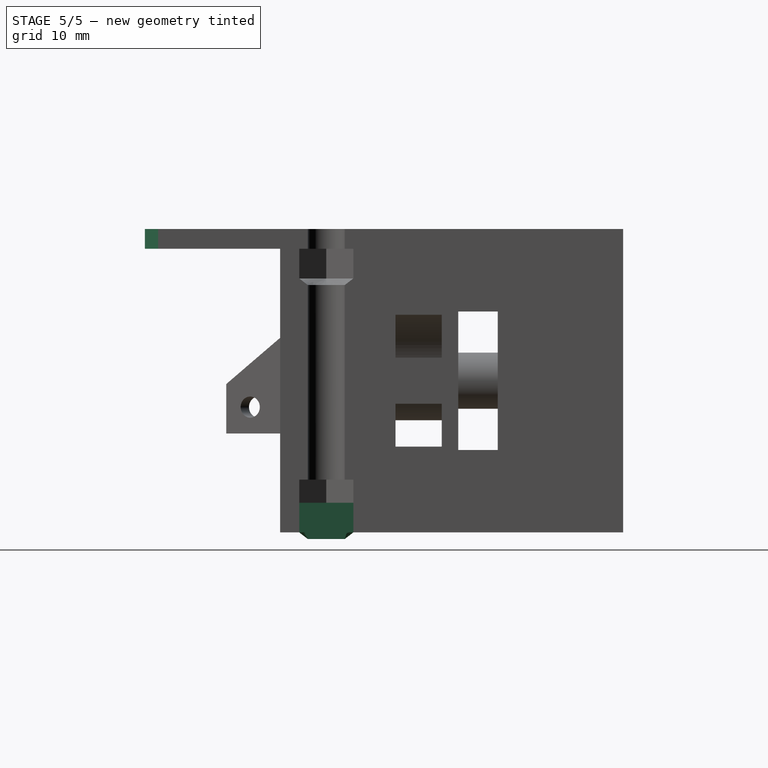
[diagram: stage 5 of 5 — right view after this stage's code; geometry added in this stage tinted green]
FEATURE [Sketcher::SketchObject] Sketch003  label="threaded-rod-nut-sketch"
  sketch-geometry (6):
    g0: LineSegment StartX=-10 StartY=-22.9 StartZ=0 EndX=-22.3671 EndY=-22.9 EndZ=0
    g1: LineSegment StartX=-22.3671 StartY=-22.9 StartZ=0 EndX=-24.7343 EndY=-27 EndZ=0
    g2: LineSegment StartX=-24.7343 StartY=-27 StartZ=0 EndX=-22.3671 EndY=-31.1 EndZ=0
    g3: LineSegment StartX=-22.3671 StartY=-31.1 StartZ=0 EndX=-10 EndY=-31.1 EndZ=0
    g4: LineSegment StartX=-10 StartY=-31.1 StartZ=0 EndX=-10 EndY=-22.9 EndZ=0
    g5: Circle [constr] CenterX=-20 CenterY=-27 CenterZ=0 NormalX=0 NormalY=0 NormalZ=1 Radius=4.1
  constraints (18):
    c: Coincident(g0,g1)
    c: Coincident(g1,g2)
    c: Coincident(g2,g3)
    c: Coincident(g3,g4)
    c: Coincident(g4,g0)
    c: Horizontal(g3)
    c: Horizontal(g0)
    c: Vertical(g4)
    c: Angle(g2,g1) = 2.0944
    c: Radius(g5) = 4.1
    c: DistanceY(g4) = 8.2
    c: Equal(g1,g2)
    c: Tangent(g1,g5)
    c: Tangent(g2,g5)
    c: DistanceX(g5,g3) = 10
    c: DistanceY(g5,g3) = -4.1
    c: DistanceX(g-1,g5) = -20
    c: DistanceY(g-1,g5) = -27
FEATURE [PartDesign::Pad] Pad001  label="threaded-rod-nut-pad"
  Length = 4.5
  Length2 = 100
  Sketch = -> Sketch003
  Type = 0
FEATURE [Sketcher::SketchObject] Sketch004  label="threaded-rod-nut-overhang-sketch"
  Placement = pos=(0,0,0) rot=(1,0,0;3.14159rad)
  Support = -> Pad001 [Face6]
  sketch-geometry (4):
    g0: ArcOfCircle CenterX=-20 CenterY=27 CenterZ=0 NormalX=0 NormalY=0 NormalZ=1 Radius=2.8 StartAngle=1.5708 EndAngle=4.71238
    g1: LineSegment StartX=-20 StartY=24.2 StartZ=0 EndX=-10 EndY=24.2 EndZ=0
    g2: LineSegment StartX=-20 StartY=29.8 StartZ=0 EndX=-10 EndY=29.8 EndZ=0
    g3: LineSegment StartX=-10 StartY=29.8 StartZ=0 EndX=-10 EndY=24.2 EndZ=0
  constraints (13):
    c: Tangent(g0,g1)
    c: Tangent(g0,g2)
    c: Coincident(g0,g2)
    c: Coincident(g0,g1)
    c: Horizontal(g1)
    c: Horizontal(g2)
    c: Coincident(g1,g3)
    c: Coincident(g2,g3)
    c: Vertical(g3)
    c: Radius(g0) = 2.8
    c: DistanceX(g1) = 10
    c: DistanceY(g-1,g0) = 27
    c: DistanceX(g-1,g0) = -20
FEATURE [PartDesign::Pad] Pad002  label="threaded-rod-nut-overhang-pad"
  Length = 1
  Length2 = 100
  Sketch = -> Sketch004
  Type = 0
FEATURE [Part::Feature] Pad001_cs  label="threaded-rod-nut-section"
  shape: bbox 14.73 x 8.2 x 2e-07 mm, 0 faces, 0 solids (baked)
FEATURE [Part::Feature] Pad002_cs  label="threaded-rod-nut-overhang-section"
  shape: bbox 12.8 x 5.6 x 2e-07 mm, 0 faces, 0 solids (baked)
FEATURE [Part::Loft] Loft  label="threaded-rod-nut-loft"
  Closed = false
  Ruled = false
  Sections = -> [Pad001_cs,Pad002_cs]
  Solid = true
FEATURE [Part::MultiFuse] Fusion  label="threaded-rod-nut-fusion"
  Shapes = -> [Loft,Pad001]
FEATURE [Part::Chamfer] Chamfer001  label="motor-e-holder-chamfer"
  Base = -> Pad004
  Edges = 2 edges r=2: [Edge284,Edge375]
FEATURE [Part::MultiFuse] Fusion003  label="body-fan-holder-fusion"
  Shapes = -> [Chamfer001,Part__Mirroring]
FEATURE [Part::Feature] Fusion003001  label="x-motor-e"
  shape: bbox 69.5 x 72.5 x 46 mm, 142 faces (baked)
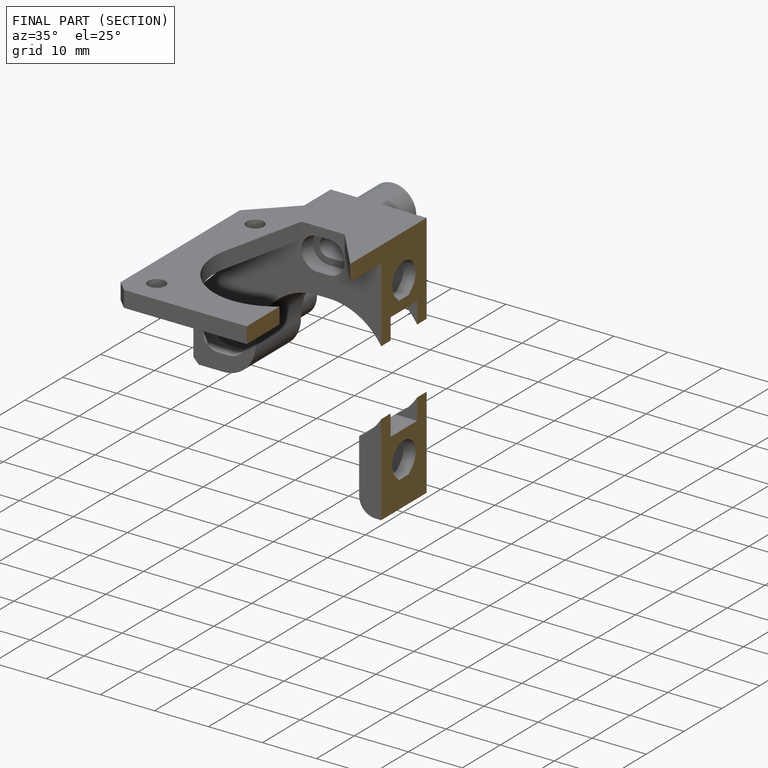
[diagram: finished part — half-section view (interior)]
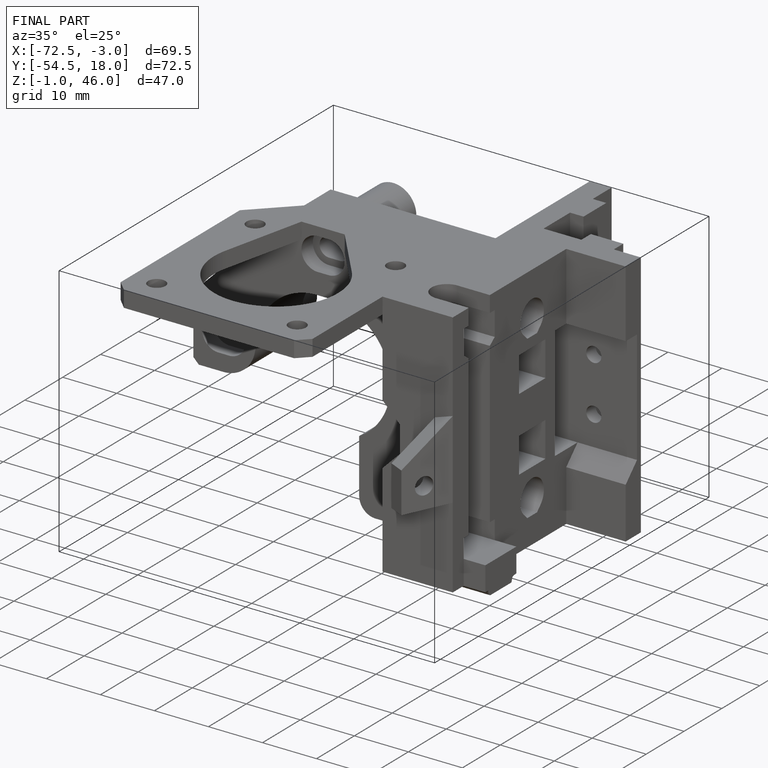
[diagram: finished part — iso view with bounding-box wireframe]
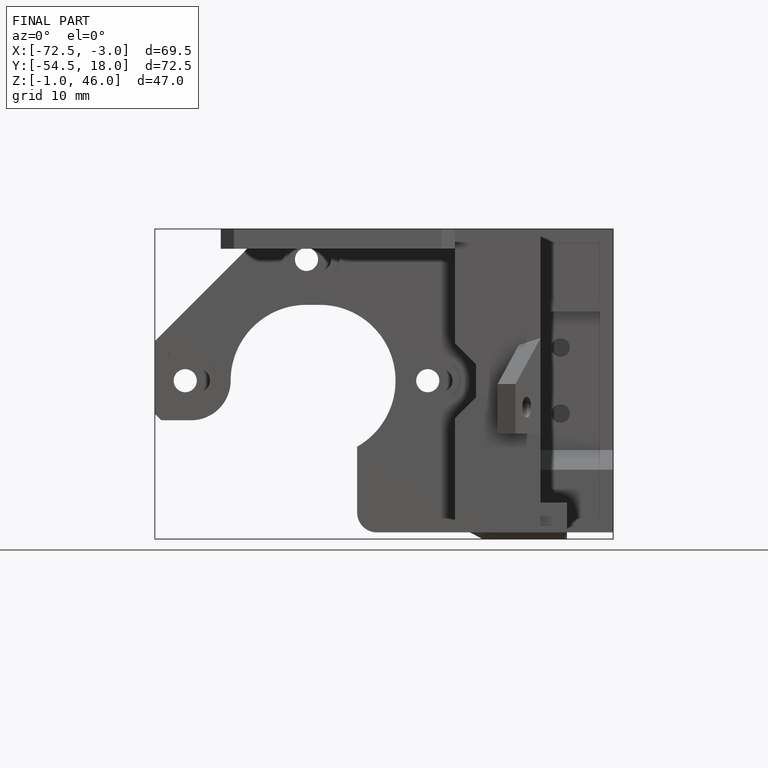
[diagram: finished part — front view with bounding-box wireframe]
